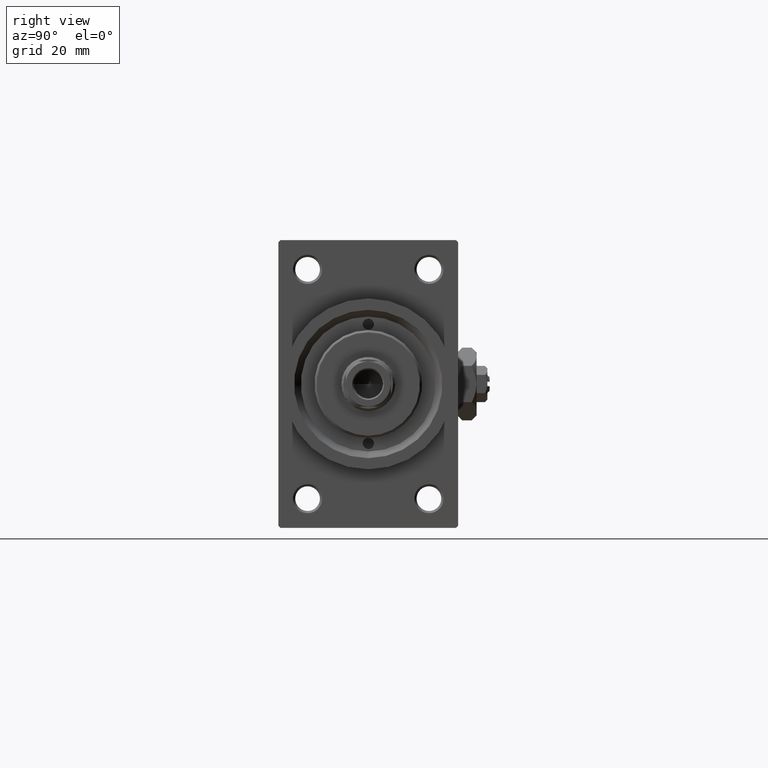
[diagram: clean part render]
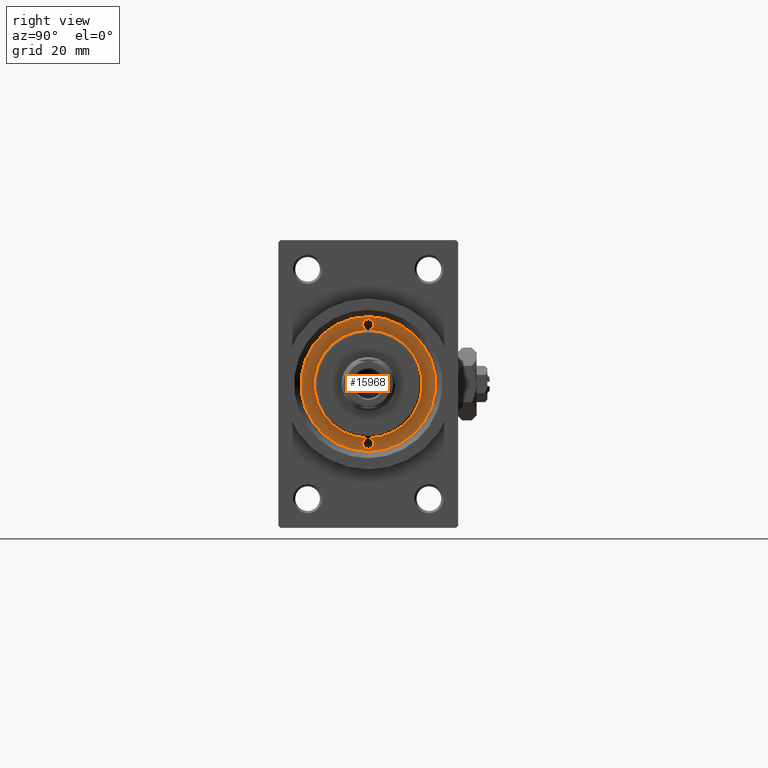
[diagram: same view with one face highlighted and labeled with its STEP entity id]
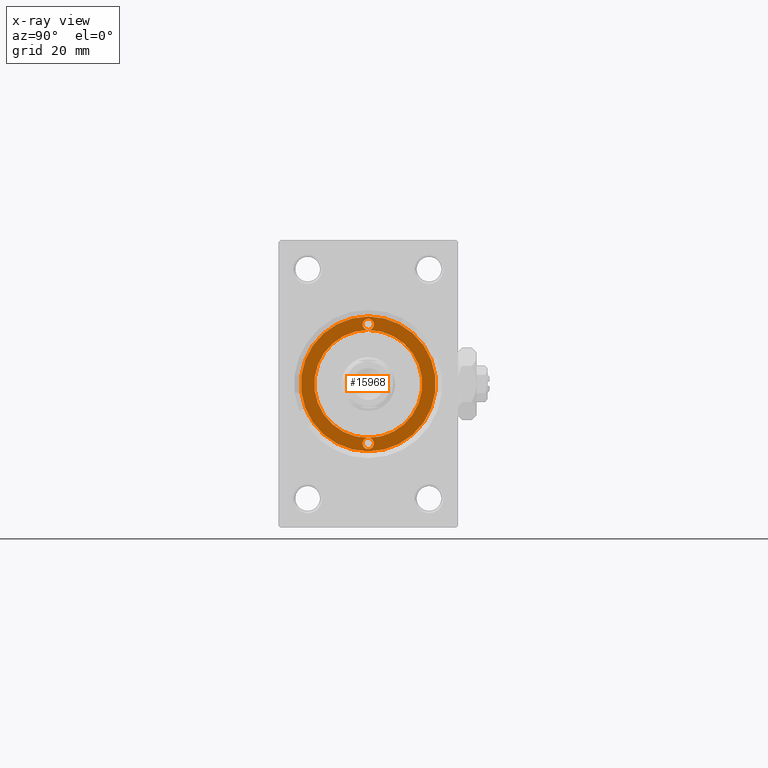
[diagram: x-ray of the same camera — body ghosted, the highlighted face saturated]
A machine part, right view. The second image highlights one B-rep face of the part: STEP entity #15968.
The next image is the same camera in x-ray: the body ghosted, the highlighted face saturated — about 0% of this face is hidden behind the body in this view.
In plain terms, the highlighted planar face has unit normal (1, -0, -0).
Its self-contained STEP definition (entity closure, byte-faithful):
#219 = CIRCLE ( 'NONE', #28889, 1.249999999999999334 ) ;
#874 = CARTESIAN_POINT ( 'NONE',  ( 12.00000000000000178, 1.469576158976824144E-15, 43.25999999999999801 ) ) ;
#1125 = AXIS2_PLACEMENT_3D ( 'NONE', #32461, #2319, #13516 ) ;
#1369 = DIRECTION ( 'NONE',  ( 1.000000000000000000, 0.000000000000000000, 0.000000000000000000 ) ) ;
#1541 = CARTESIAN_POINT ( 'NONE',  ( 14.49999999999999822, 0.000000000000000000, 43.25999999999999801 ) ) ;
#1890 = FACE_BOUND ( 'NONE', #4909, .T. ) ;
#2319 = DIRECTION ( 'NONE',  ( 0.000000000000000000, 0.000000000000000000, 1.000000000000000000 ) ) ;
#2876 = DIRECTION ( 'NONE',  ( 0.000000000000000000, 0.000000000000000000, 1.000000000000000000 ) ) ;
#4243 = CIRCLE ( 'NONE', #24121, 1.249999999999999334 ) ;
#4909 = EDGE_LOOP ( 'NONE', ( #23050, #27517, #36101, #6393, #20592, #36308 ) ) ;
#6393 = ORIENTED_EDGE ( 'NONE', *, *, #14218, .F. ) ;
#7498 = DIRECTION ( 'NONE',  ( 0.000000000000000000, 0.000000000000000000, 1.000000000000000000 ) ) ;
#7713 = VERTEX_POINT ( 'NONE', #874 ) ;
#8075 = CARTESIAN_POINT ( 'NONE',  ( -13.25000000000000178, 0.000000000000000000, 43.25999999999999801 ) ) ;
#8452 = CARTESIAN_POINT ( 'NONE',  ( -15.00000000000000000, 0.000000000000000000, 43.25999999999999801 ) ) ;
#10941 = DIRECTION ( 'NONE',  ( -0.000000000000000000, -0.000000000000000000, 1.000000000000000000 ) ) ;
#11970 = CARTESIAN_POINT ( 'NONE',  ( -12.00000000000000178, 0.000000000000000000, 43.25999999999999801 ) ) ;
#13516 = DIRECTION ( 'NONE',  ( 1.000000000000000000, 0.000000000000000000, 0.000000000000000000 ) ) ;
#14111 = EDGE_LOOP ( 'NONE', ( #23015, #26910 ) ) ;
#14118 = CARTESIAN_POINT ( 'NONE',  ( 15.00000000000000000, 1.836970198721029589E-15, 43.25999999999999801 ) ) ;
#14218 = EDGE_CURVE ( 'NONE', #7713, #21965, #29283, .T. ) ;
#15078 = EDGE_CURVE ( 'NONE', #21965, #26828, #30079, .T. ) ;
#15438 = CIRCLE ( 'NONE', #1125, 12.00000000000000178 ) ;
#15579 = DIRECTION ( 'NONE',  ( 0.000000000000000000, 0.000000000000000000, 1.000000000000000000 ) ) ;
#15968 = ADVANCED_FACE ( 'NONE', ( #1890, #36724 ), #47454, .T. ) ;
#16550 = AXIS2_PLACEMENT_3D ( 'NONE', #41190, #29273, #18299 ) ;
#18299 = DIRECTION ( 'NONE',  ( 1.000000000000000000, 0.000000000000000000, 0.000000000000000000 ) ) ;
#18461 = DIRECTION ( 'NONE',  ( 1.000000000000000000, 0.000000000000000000, 0.000000000000000000 ) ) ;
#20312 = EDGE_CURVE ( 'NONE', #43371, #33163, #45775, .T. ) ;
#20592 = ORIENTED_EDGE ( 'NONE', *, *, #26326, .F. ) ;
#21965 = VERTEX_POINT ( 'NONE', #11970 ) ;
#22442 = DIRECTION ( 'NONE',  ( 1.000000000000000000, 0.000000000000000000, 0.000000000000000000 ) ) ;
#23015 = ORIENTED_EDGE ( 'NONE', *, *, #26345, .T. ) ;
#23050 = ORIENTED_EDGE ( 'NONE', *, *, #41824, .F. ) ;
#24121 = AXIS2_PLACEMENT_3D ( 'NONE', #27126, #30866, #45785 ) ;
#26128 = AXIS2_PLACEMENT_3D ( 'NONE', #30668, #7498, #22442 ) ;
#26326 = EDGE_CURVE ( 'NONE', #47916, #7713, #42812, .T. ) ;
#26345 = EDGE_CURVE ( 'NONE', #33163, #43371, #36445, .T. ) ;
#26828 = VERTEX_POINT ( 'NONE', #28532 ) ;
#26910 = ORIENTED_EDGE ( 'NONE', *, *, #20312, .T. ) ;
#27126 = CARTESIAN_POINT ( 'NONE',  ( -13.25000000000000178, 0.000000000000000000, 43.25999999999999801 ) ) ;
#27290 = CARTESIAN_POINT ( 'NONE',  ( 0.000000000000000000, 0.000000000000000000, 43.25999999999999801 ) ) ;
#27515 = DIRECTION ( 'NONE',  ( -0.000000000000000000, -0.000000000000000000, 1.000000000000000000 ) ) ;
#27517 = ORIENTED_EDGE ( 'NONE', *, *, #40400, .F. ) ;
#28532 = CARTESIAN_POINT ( 'NONE',  ( -14.50000000000000000, 1.530808498934191571E-16, 43.25999999999999801 ) ) ;
#28889 = AXIS2_PLACEMENT_3D ( 'NONE', #36820, #10941, #41062 ) ;
#29273 = DIRECTION ( 'NONE',  ( 0.000000000000000000, 0.000000000000000000, 1.000000000000000000 ) ) ;
#29283 = CIRCLE ( 'NONE', #16550, 12.00000000000000178 ) ;
#29936 = CARTESIAN_POINT ( 'NONE',  ( 13.25000000000000000, 0.000000000000000000, 43.25999999999999801 ) ) ;
#30079 = CIRCLE ( 'NONE', #34034, 1.249999999999999334 ) ;
#30668 = CARTESIAN_POINT ( 'NONE',  ( 0.000000000000000000, 0.000000000000000000, 43.25999999999999801 ) ) ;
#30693 = AXIS2_PLACEMENT_3D ( 'NONE', #27290, #15579, #1369 ) ;
#30866 = DIRECTION ( 'NONE',  ( -0.000000000000000000, -0.000000000000000000, 1.000000000000000000 ) ) ;
#32461 = CARTESIAN_POINT ( 'NONE',  ( 0.000000000000000000, 0.000000000000000000, 43.25999999999999801 ) ) ;
#33163 = VERTEX_POINT ( 'NONE', #8452 ) ;
#34034 = AXIS2_PLACEMENT_3D ( 'NONE', #8075, #27515, #38932 ) ;
#34861 = AXIS2_PLACEMENT_3D ( 'NONE', #29936, #42083, #18461 ) ;
#36101 = ORIENTED_EDGE ( 'NONE', *, *, #15078, .F. ) ;
#36308 = ORIENTED_EDGE ( 'NONE', *, *, #43896, .F. ) ;
#36445 = CIRCLE ( 'NONE', #26128, 15.00000000000000000 ) ;
#36724 = FACE_OUTER_BOUND ( 'NONE', #14111, .T. ) ;
#36820 = CARTESIAN_POINT ( 'NONE',  ( 13.25000000000000000, 0.000000000000000000, 43.25999999999999801 ) ) ;
#37890 = AXIS2_PLACEMENT_3D ( 'NONE', #40210, #2876, #48438 ) ;
#38932 = DIRECTION ( 'NONE',  ( 1.000000000000000000, 0.000000000000000000, 0.000000000000000000 ) ) ;
#40210 = CARTESIAN_POINT ( 'NONE',  ( 0.000000000000000000, 0.000000000000000000, 43.25999999999999801 ) ) ;
#40400 = EDGE_CURVE ( 'NONE', #26828, #21965, #4243, .T. ) ;
#41062 = DIRECTION ( 'NONE',  ( 1.000000000000000000, 0.000000000000000000, 0.000000000000000000 ) ) ;
#41190 = CARTESIAN_POINT ( 'NONE',  ( 0.000000000000000000, 0.000000000000000000, 43.25999999999999801 ) ) ;
#41824 = EDGE_CURVE ( 'NONE', #21965, #7713, #15438, .T. ) ;
#42083 = DIRECTION ( 'NONE',  ( -0.000000000000000000, -0.000000000000000000, 1.000000000000000000 ) ) ;
#42812 = CIRCLE ( 'NONE', #34861, 1.249999999999999334 ) ;
#43371 = VERTEX_POINT ( 'NONE', #14118 ) ;
#43896 = EDGE_CURVE ( 'NONE', #7713, #47916, #219, .T. ) ;
#45775 = CIRCLE ( 'NONE', #30693, 15.00000000000000000 ) ;
#45785 = DIRECTION ( 'NONE',  ( 1.000000000000000000, 0.000000000000000000, 0.000000000000000000 ) ) ;
#47454 = PLANE ( 'NONE',  #37890 ) ;
#47916 = VERTEX_POINT ( 'NONE', #1541 ) ;
#48438 = DIRECTION ( 'NONE',  ( 1.000000000000000000, 0.000000000000000000, -0.000000000000000000 ) ) ;